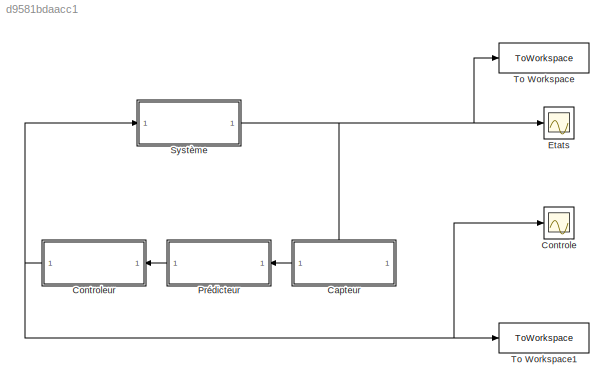
MODEL slx_d9581bdaacc1
KIND model
CONFIG AbsTol = auto
CONFIG EnableMultiTasking = off
CONFIG FixedStep = auto
CONFIG MaxStep = auto
CONFIG MinStep = auto
CONFIG RelTol = 1e-3
CONFIG SampleTimeConstraint = Unconstrained
CONFIG SolverName = VariableStepAuto
CONFIG StartTime = 0.0
CONFIG StopTime = 100.0
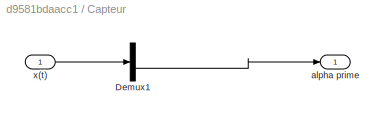
BLOCK [SubSystem] Capteur
  PortSchema = {"entries":[{"content":{"sides":[{"content":{"connectorIds":[]},"type":"ConnectorPlacement.EquallySpacedRectSide","uuid":"55917e7c-50a2-4d55-9b01-6b24f62dcf1b"},{"content":{"connectorIds":["Out1"],"side":"RIGHT"},"type":"ConnectorPlacement.EquallySpacedRectSide","uuid":"a02dadc6-169d-4f04-be32-da4ea2654498"},{"content":{"connectorIds":["In1"],"side":"TOP"},"type":"ConnectorPlacement.EquallySpacedR...<+240ch>
  Ports = [1, 1]
  RequestExecContextInheritance = off
BLOCK [Demux] Capteur/Demux1
  Outputs = 2
  Ports = [1, 2]
BLOCK [Outport] Capteur/alpha prime
BLOCK [Inport] Capteur/x(t)
BLOCK [Scope] Controle
  Floating = off
  NumInputPorts = 1
  Ports = [1]
  ScopeSpecificationString = Simulink.scopes.TimeScopeBlockCfg('CurrentConfiguration', extmgr.ConfigurationSet(extmgr.Configuration('Core','General UI',true),extmgr.Configuration('Core','Source UI',true),extmgr.Configuration('Sources','WiredSimulink',true,'DataLoggingVariableName','ScopeData1'),extmgr.Configuration('Visuals','Time Domain',true),extmgr.Configuration('Tools','Plot Navigation',true),extmgr.Configuration('Tools',...<+40ch>
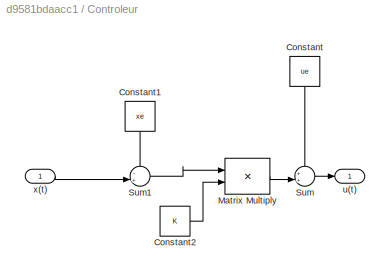
BLOCK [SubSystem] Controleur
  Ports = [1, 1]
  RequestExecContextInheritance = off
BLOCK [Constant] Controleur/Constant
  NameLocation = left
  Value = ue
BLOCK [Constant] Controleur/Constant1
  NameLocation = left
  Value = xe
BLOCK [Constant] Controleur/Constant2
  Value = K
BLOCK [Product] Controleur/Matrix Multiply
  Multiplication = Matrix(*)
  Ports = [2, 1]
BLOCK [Sum] Controleur/Sum
  Inputs = ++|
  Ports = [2, 1]
BLOCK [Sum] Controleur/Sum1
  Inputs = -+|
  Ports = [2, 1]
BLOCK [Outport] Controleur/u(t)
BLOCK [Inport] Controleur/x(t)
BLOCK [Scope] Etats
  Floating = off
  NumInputPorts = 1
  Ports = [1]
  ScopeSpecificationString = Simulink.scopes.TimeScopeBlockCfg('CurrentConfiguration', extmgr.ConfigurationSet(extmgr.Configuration('Core','General UI',true),extmgr.Configuration('Core','Source UI',true),extmgr.Configuration('Sources','WiredSimulink',true),extmgr.Configuration('Visuals','Time Domain',true,'SerializedDisplays',{struct('MinYLimReal','-0.06257','MaxYLimReal','0.18149','YLabelReal','','MinYLimMag','0.00000','MaxY...<+1366ch>
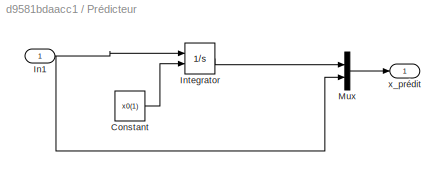
BLOCK [SubSystem] Prédicteur
  Ports = [1, 1]
  RequestExecContextInheritance = off
BLOCK [Constant] Prédicteur/Constant
  Value = x0(1)
BLOCK [Inport] Prédicteur/In1
BLOCK [Integrator] Prédicteur/Integrator
  InitialConditionSource = external
  Ports = [2, 1]
BLOCK [Mux] Prédicteur/Mux
  DisplayOption = bar
  Inputs = 2
  Ports = [2, 1]
BLOCK [Outport] Prédicteur/x_prédit
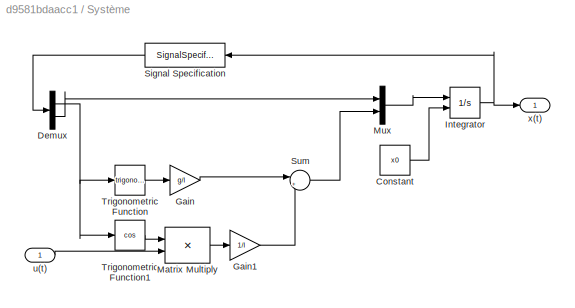
BLOCK [SubSystem] Système
  Ports = [1, 1]
  RequestExecContextInheritance = off
BLOCK [Constant] Système/Constant
  Value = x0
BLOCK [Demux] Système/Demux
  Outputs = 2
  Ports = [1, 2]
BLOCK [Gain] Système/Gain
  Gain = g/l
BLOCK [Gain] Système/Gain1
  Gain = 1/l
BLOCK [Integrator] Système/Integrator
  InitialConditionSource = external
  Ports = [2, 1]
BLOCK [Product] Système/Matrix Multiply
  Ports = [2, 1]
BLOCK [Mux] Système/Mux
  DisplayOption = bar
  Inputs = 2
  Ports = [2, 1]
BLOCK [SignalSpecification] Système/Signal Specification
  Dimensions = 2
BLOCK [Sum] Système/Sum
  Inputs = |+-
  Ports = [2, 1]
BLOCK [Trigonometry] Système/Trigonometric Function
  Ports = [1, 1]
BLOCK [Trigonometry] Système/Trigonometric Function1
  Operator = cos
  Ports = [1, 1]
BLOCK [Inport] Système/u(t)
BLOCK [Outport] Système/x(t)
BLOCK [ToWorkspace] To Workspace
  FixptAsFi = on
  MaxDataPoints = inf
  Ports = [1]
  SampleTime = -1
  SaveFormat = Timeseries
  VariableName = X
BLOCK [ToWorkspace] To Workspace1
  FixptAsFi = on
  MaxDataPoints = inf
  Ports = [1]
  SampleTime = -1
  SaveFormat = Timeseries
  VariableName = U
LINE Capteur/Demux1:2 -> Capteur/alpha prime:1
LINE Capteur/x(t):1 -> Capteur/Demux1:1
LINE Capteur:1 -> Prédicteur:1
LINE Controleur/Constant1:1 -> Controleur/Sum1:1
LINE Controleur/Constant2:1 -> Controleur/Matrix Multiply:2
LINE Controleur/Constant:1 -> Controleur/Sum:1
LINE Controleur/Matrix Multiply:1 -> Controleur/Sum:2
LINE Controleur/Sum1:1 -> Controleur/Matrix Multiply:1
LINE Controleur/Sum:1 -> Controleur/u(t):1
LINE Controleur/x(t):1 -> Controleur/Sum1:2
NET Controleur:1 -> Controle:1, Système:1, To Workspace1:1
LINE Prédicteur/Constant:1 -> Prédicteur/Integrator:2
NET Prédicteur/In1:1 -> Prédicteur/Integrator:1, Prédicteur/Mux:2
LINE Prédicteur/Integrator:1 -> Prédicteur/Mux:1
LINE Prédicteur/Mux:1 -> Prédicteur/x_prédit:1
LINE Prédicteur:1 -> Controleur:1
LINE Système/Constant:1 -> Système/Integrator:2
NET Système/Demux:1 -> Système/Trigonometric Function1:1, Système/Trigonometric Function:1
LINE Système/Demux:2 -> Système/Mux:1
LINE Système/Gain1:1 -> Système/Sum:2
LINE Système/Gain:1 -> Système/Sum:1
NET Système/Integrator:1 -> Système/Signal Specification:1, Système/x(t):1
LINE Système/Matrix Multiply:1 -> Système/Gain1:1
LINE Système/Mux:1 -> Système/Integrator:1
LINE Système/Signal Specification:1 -> Système/Demux:1
LINE Système/Sum:1 -> Système/Mux:2
LINE Système/Trigonometric Function1:1 -> Système/Matrix Multiply:1
LINE Système/Trigonometric Function:1 -> Système/Gain:1
LINE Système/u(t):1 -> Système/Matrix Multiply:2
NET Système:1 -> Capteur:1, Etats:1, To Workspace:1
note: NET lines group one-source signal fan-out (src -> all destinations, sorted); 1:1 wires keep LINE
